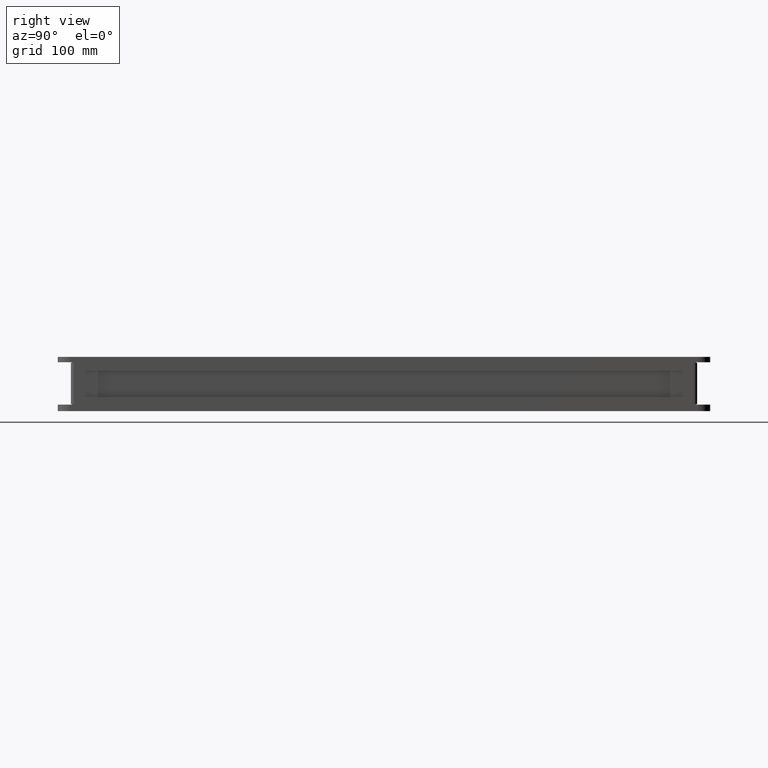
[diagram: clean part render]
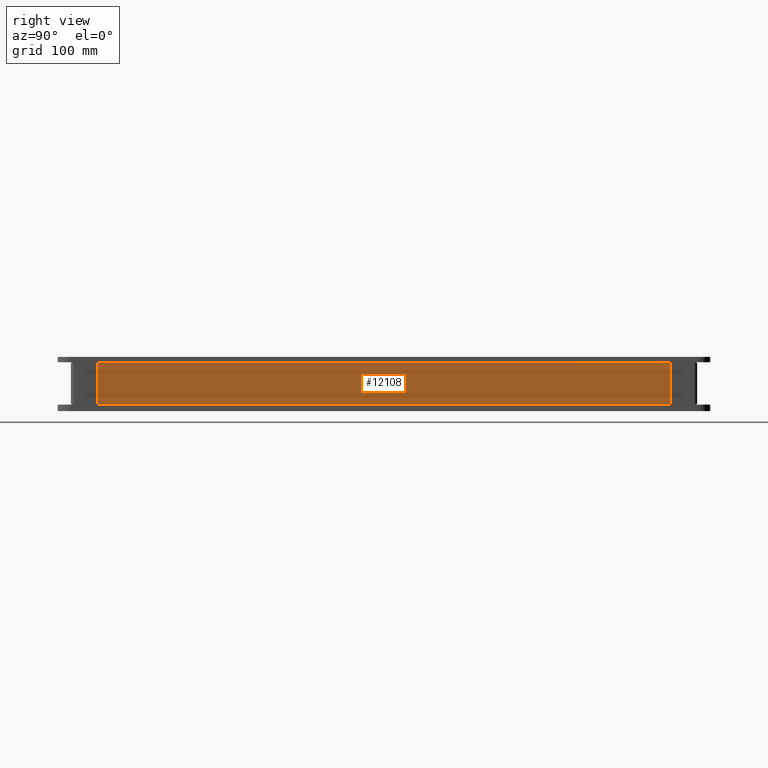
[diagram: same view with one face highlighted and labeled with its STEP entity id]
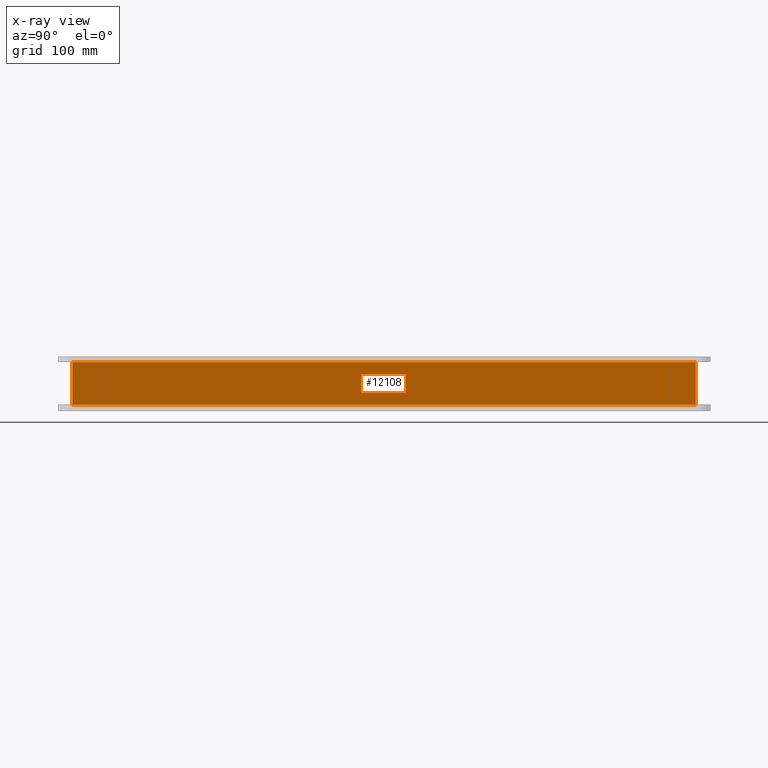
[diagram: x-ray of the same camera — body ghosted, the highlighted face saturated]
A machine part, right view. The second image highlights one B-rep face of the part: STEP entity #12108.
The next image is the same camera in x-ray: the body ghosted, the highlighted face saturated — about 0% of this face is hidden behind the body in this view.
In plain terms, the highlighted planar face has unit normal (-1, 0, 0).
Its self-contained STEP definition (entity closure, byte-faithful):
#325 = ORIENTED_EDGE ( 'NONE', *, *, #8343, .F. ) ;
#839 = EDGE_CURVE ( 'NONE', #5794, #9916, #2940, .T. ) ;
#1247 = CARTESIAN_POINT ( 'NONE',  ( 390.6333857621494303, -278.0308025497471363, -393.5013852687679332 ) ) ;
#1326 = LINE ( 'NONE', #17655, #7539 ) ;
#1453 = EDGE_CURVE ( 'NONE', #9916, #19516, #2110, .T. ) ;
#1466 = DIRECTION ( 'NONE',  ( -3.081487911019577365E-33, 7.703719777548943412E-34, -1.000000000000000000 ) ) ;
#1574 = ORIENTED_EDGE ( 'NONE', *, *, #14024, .F. ) ;
#1629 = DIRECTION ( 'NONE',  ( 0.000000000000000000, 0.000000000000000000, 1.000000000000000000 ) ) ;
#1828 = CARTESIAN_POINT ( 'NONE',  ( 390.6333857621494303, 293.9691974502529774, -393.5013852687679901 ) ) ;
#2010 = VECTOR ( 'NONE', #5901, 1000.000000000000000 ) ;
#2110 = LINE ( 'NONE', #11515, #11440 ) ;
#2214 = CARTESIAN_POINT ( 'NONE',  ( 390.6333857621494303, 295.7012482578218737, -355.5013852687680469 ) ) ;
#2258 = EDGE_CURVE ( 'NONE', #19516, #3258, #6830, .T. ) ;
#2940 = LINE ( 'NONE', #8990, #14578 ) ;
#3150 = EDGE_CURVE ( 'NONE', #10302, #8020, #1326, .T. ) ;
#3258 = VERTEX_POINT ( 'NONE', #3387 ) ;
#3261 = CARTESIAN_POINT ( 'NONE',  ( 390.6333857621494303, 293.9691974502529774, -355.5013852687679901 ) ) ;
#3387 = CARTESIAN_POINT ( 'NONE',  ( 390.6333857621494303, -278.0308025497470794, -394.0013852687680469 ) ) ;
#3404 = CARTESIAN_POINT ( 'NONE',  ( 390.6333857621494303, 595.9691974502527501, -445.0013852687680469 ) ) ;
#3626 = EDGE_CURVE ( 'NONE', #8020, #7352, #10595, .T. ) ;
#4117 = VERTEX_POINT ( 'NONE', #10477 ) ;
#4200 = LINE ( 'NONE', #18860, #17836 ) ;
#4495 = AXIS2_PLACEMENT_3D ( 'NONE', #3404, #15192, #1629 ) ;
#4529 = VECTOR ( 'NONE', #16123, 1000.000000000000000 ) ;
#4611 = CARTESIAN_POINT ( 'NONE',  ( 390.6333857621494303, 295.9691974502528637, -445.0013852687678764 ) ) ;
#4834 = VECTOR ( 'NONE', #12549, 1000.000000000000000 ) ;
#5474 = DIRECTION ( 'NONE',  ( -0.000000000000000000, 0.000000000000000000, -1.000000000000000000 ) ) ;
#5486 = VERTEX_POINT ( 'NONE', #12842 ) ;
#5640 = CARTESIAN_POINT ( 'NONE',  ( 390.6333857621494303, -278.0308025497471363, -394.0013852687678764 ) ) ;
#5794 = VERTEX_POINT ( 'NONE', #15308 ) ;
#5901 = DIRECTION ( 'NONE',  ( -0.000000000000000000, 0.000000000000000000, -1.000000000000000000 ) ) ;
#6107 = EDGE_CURVE ( 'NONE', #5486, #7352, #4200, .T. ) ;
#6192 = EDGE_LOOP ( 'NONE', ( #1574, #8288, #19509, #12855, #8646, #325, #8993, #18480, #10161, #11577, #19095, #8628 ) ) ;
#6323 = DIRECTION ( 'NONE',  ( 0.000000000000000000, -1.000000000000000000, -9.769687673758004719E-33 ) ) ;
#6574 = EDGE_CURVE ( 'NONE', #3258, #11744, #8601, .T. ) ;
#6793 = LINE ( 'NONE', #9769, #4834 ) ;
#6815 = EDGE_CURVE ( 'NONE', #10511, #10302, #6793, .T. ) ;
#6830 = LINE ( 'NONE', #5640, #15541 ) ;
#7352 = VERTEX_POINT ( 'NONE', #2214 ) ;
#7441 = VECTOR ( 'NONE', #17209, 1000.000000000000000 ) ;
#7539 = VECTOR ( 'NONE', #5474, 1000.000000000000000 ) ;
#7681 = VERTEX_POINT ( 'NONE', #16859 ) ;
#8020 = VERTEX_POINT ( 'NONE', #19522 ) ;
#8288 = ORIENTED_EDGE ( 'NONE', *, *, #839, .T. ) ;
#8343 = EDGE_CURVE ( 'NONE', #7681, #11744, #13826, .T. ) ;
#8586 = VECTOR ( 'NONE', #13609, 1000.000000000000000 ) ;
#8601 = LINE ( 'NONE', #10087, #4529 ) ;
#8628 = ORIENTED_EDGE ( 'NONE', *, *, #16102, .T. ) ;
#8646 = ORIENTED_EDGE ( 'NONE', *, *, #6574, .T. ) ;
#8990 = CARTESIAN_POINT ( 'NONE',  ( 390.6333857621494303, -277.7628533573162031, -355.5013852687678764 ) ) ;
#8992 = CARTESIAN_POINT ( 'NONE',  ( 390.6333857621494303, 295.9691974502528637, -355.0013852687701501 ) ) ;
#8993 = ORIENTED_EDGE ( 'NONE', *, *, #18286, .F. ) ;
#9357 = PLANE ( 'NONE',  #4495 ) ;
#9769 = CARTESIAN_POINT ( 'NONE',  ( 390.6333857621494303, 595.9691974502527501, -355.0013852687701501 ) ) ;
#9916 = VERTEX_POINT ( 'NONE', #12752 ) ;
#10087 = CARTESIAN_POINT ( 'NONE',  ( 390.6333857621494303, 595.9691974502527501, -394.0013852687680469 ) ) ;
#10161 = ORIENTED_EDGE ( 'NONE', *, *, #3626, .F. ) ;
#10302 = VERTEX_POINT ( 'NONE', #8992 ) ;
#10477 = CARTESIAN_POINT ( 'NONE',  ( 390.6333857621494303, -278.0308025497471363, -355.5013852687678764 ) ) ;
#10511 = VERTEX_POINT ( 'NONE', #17648 ) ;
#10595 = LINE ( 'NONE', #3261, #18368 ) ;
#10729 = LINE ( 'NONE', #1828, #8586 ) ;
#10772 = CARTESIAN_POINT ( 'NONE',  ( 390.6333857621494303, -278.0308025497471363, -445.0013852687678764 ) ) ;
#11440 = VECTOR ( 'NONE', #15870, 1000.000000000000000 ) ;
#11515 = CARTESIAN_POINT ( 'NONE',  ( 390.6333857621494303, 595.9691974502527501, -393.5013852687679332 ) ) ;
#11577 = ORIENTED_EDGE ( 'NONE', *, *, #3150, .F. ) ;
#11744 = VERTEX_POINT ( 'NONE', #17483 ) ;
#12108 = ADVANCED_FACE ( 'NONE', ( #15488 ), #9357, .F. ) ;
#12549 = DIRECTION ( 'NONE',  ( 0.000000000000000000, 1.000000000000000000, -0.000000000000000000 ) ) ;
#12752 = CARTESIAN_POINT ( 'NONE',  ( 390.6333857621494303, -277.7628533573162031, -393.5013852687679332 ) ) ;
#12842 = CARTESIAN_POINT ( 'NONE',  ( 390.6333857621494303, 295.7012482578218737, -393.5013852687679901 ) ) ;
#12855 = ORIENTED_EDGE ( 'NONE', *, *, #2258, .T. ) ;
#13609 = DIRECTION ( 'NONE',  ( 0.000000000000000000, 1.000000000000000000, 9.769687673758004719E-33 ) ) ;
#13826 = LINE ( 'NONE', #4611, #2010 ) ;
#14024 = EDGE_CURVE ( 'NONE', #5794, #4117, #17636, .T. ) ;
#14578 = VECTOR ( 'NONE', #1466, 1000.000000000000000 ) ;
#15049 = DIRECTION ( 'NONE',  ( -0.000000000000000000, 0.000000000000000000, -1.000000000000000000 ) ) ;
#15192 = DIRECTION ( 'NONE',  ( -1.000000000000000000, 0.000000000000000000, 0.000000000000000000 ) ) ;
#15308 = CARTESIAN_POINT ( 'NONE',  ( 390.6333857621494303, -277.7628533573162031, -355.5013852687678764 ) ) ;
#15488 = FACE_OUTER_BOUND ( 'NONE', #6192, .T. ) ;
#15541 = VECTOR ( 'NONE', #17832, 1000.000000000000000 ) ;
#15870 = DIRECTION ( 'NONE',  ( 0.000000000000000000, -1.000000000000000000, -7.703719777548943412E-34 ) ) ;
#16102 = EDGE_CURVE ( 'NONE', #10511, #4117, #18006, .T. ) ;
#16123 = DIRECTION ( 'NONE',  ( 0.000000000000000000, 1.000000000000000000, 0.000000000000000000 ) ) ;
#16859 = CARTESIAN_POINT ( 'NONE',  ( 390.6333857621494303, 295.9691974502528637, -393.5013852687679901 ) ) ;
#17209 = DIRECTION ( 'NONE',  ( 0.000000000000000000, -1.000000000000000000, -7.703719777548943412E-34 ) ) ;
#17483 = CARTESIAN_POINT ( 'NONE',  ( 390.6333857621493166, 295.9691974502528637, -394.0013852687679332 ) ) ;
#17605 = CARTESIAN_POINT ( 'NONE',  ( 390.6333857621494303, -276.0308025497473068, -355.5013852687678764 ) ) ;
#17636 = LINE ( 'NONE', #17605, #7441 ) ;
#17648 = CARTESIAN_POINT ( 'NONE',  ( 390.6333857621494303, -278.0308025497471363, -355.0013852687701501 ) ) ;
#17655 = CARTESIAN_POINT ( 'NONE',  ( 390.6333857621494303, 295.9691974502528637, -445.0013852687678764 ) ) ;
#17661 = VECTOR ( 'NONE', #15049, 1000.000000000000000 ) ;
#17832 = DIRECTION ( 'NONE',  ( -0.000000000000000000, 0.000000000000000000, -1.000000000000000000 ) ) ;
#17836 = VECTOR ( 'NONE', #19155, 1000.000000000000000 ) ;
#18006 = LINE ( 'NONE', #10772, #17661 ) ;
#18286 = EDGE_CURVE ( 'NONE', #5486, #7681, #10729, .T. ) ;
#18368 = VECTOR ( 'NONE', #6323, 1000.000000000000000 ) ;
#18480 = ORIENTED_EDGE ( 'NONE', *, *, #6107, .T. ) ;
#18860 = CARTESIAN_POINT ( 'NONE',  ( 390.6333857621494303, 295.7012482578218737, -393.5013852687679901 ) ) ;
#19095 = ORIENTED_EDGE ( 'NONE', *, *, #6815, .F. ) ;
#19155 = DIRECTION ( 'NONE',  ( 3.081487911019577023E-33, -9.769687673758004719E-33, 1.000000000000000000 ) ) ;
#19509 = ORIENTED_EDGE ( 'NONE', *, *, #1453, .T. ) ;
#19516 = VERTEX_POINT ( 'NONE', #1247 ) ;
#19522 = CARTESIAN_POINT ( 'NONE',  ( 390.6333857621494303, 295.9691974502528637, -355.5013852687679901 ) ) ;